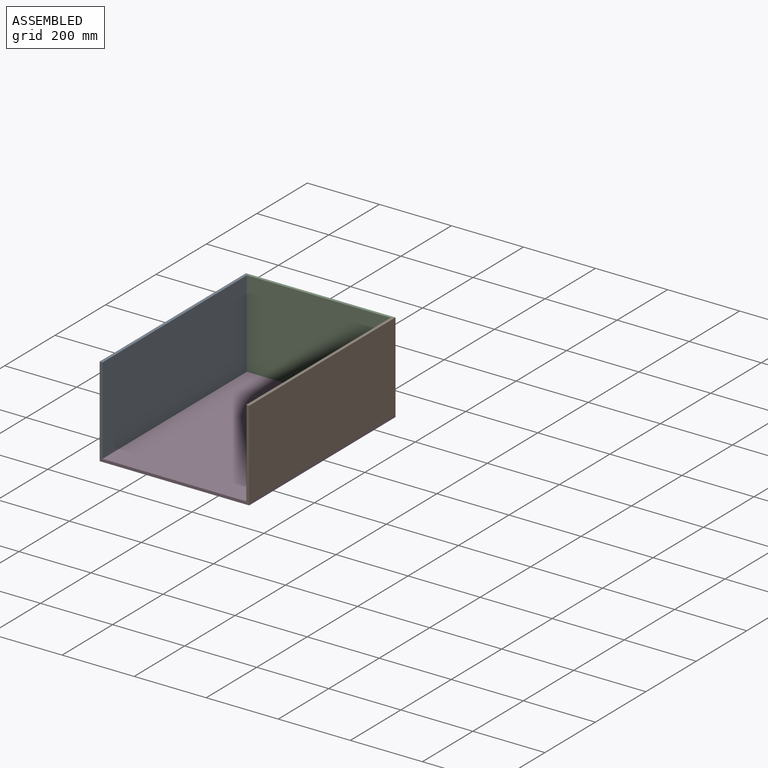
[diagram: assembled view]
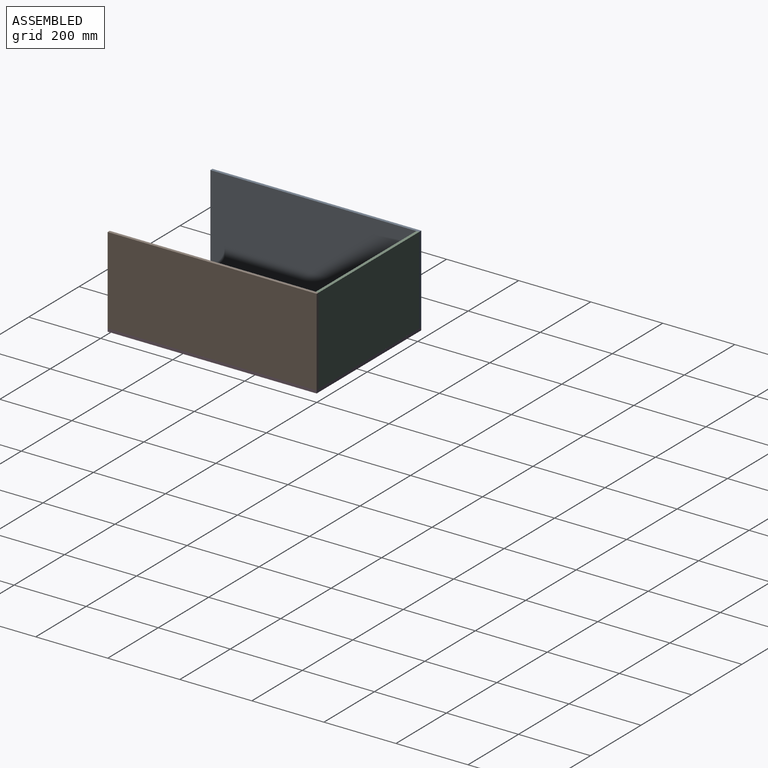
[diagram: assembled view, second angle]
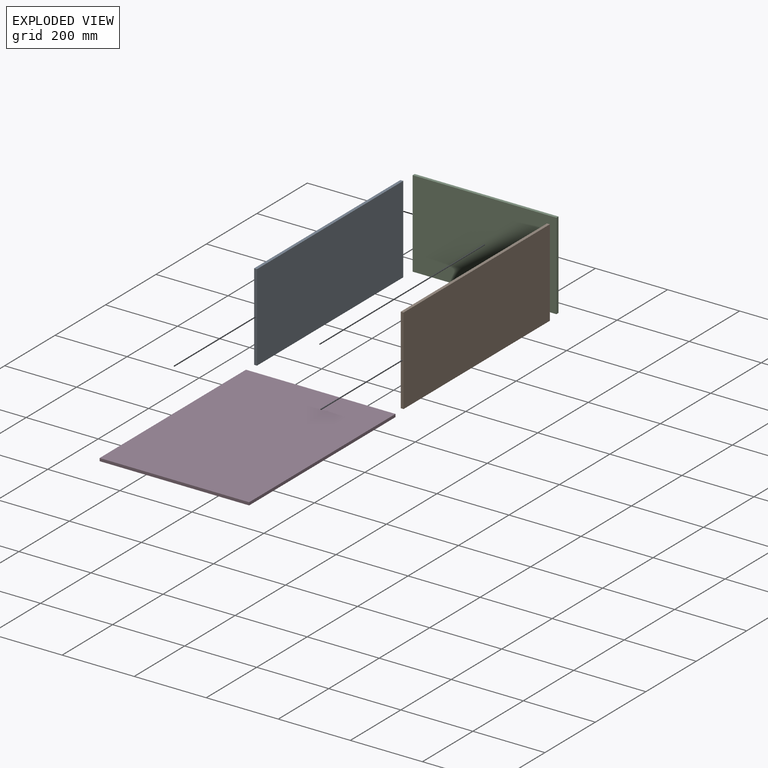
[diagram: exploded view]
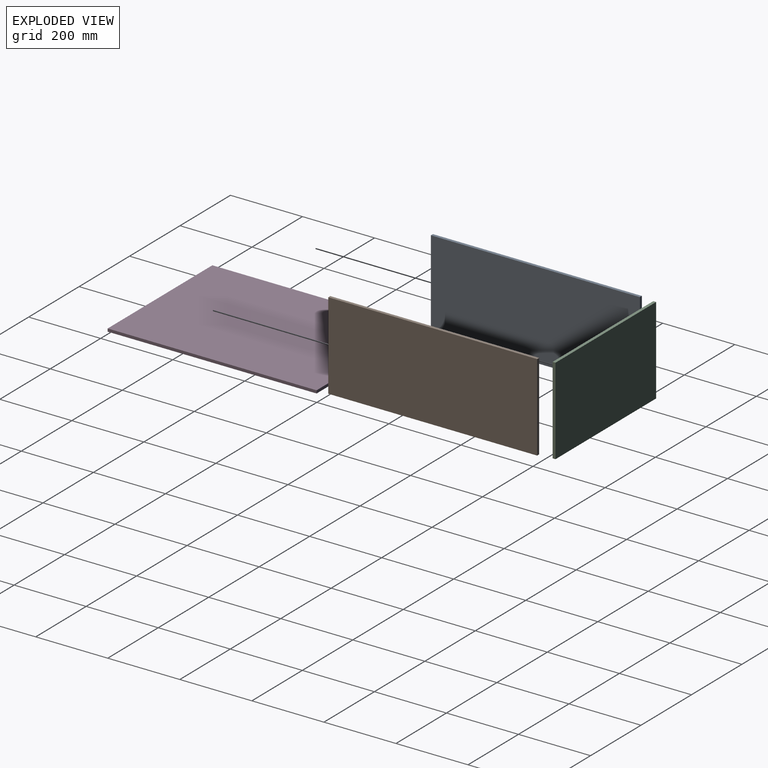
[diagram: exploded view, second angle]
ASSEMBLY  parts=4 mates=3
PART A: 6 faces, bbox 8x580x242 mm
  f0: plane 242x8mm, normal (0,1,0), area 1936mm2, adj f1,f3,f4,f5
  f1: plane 580x8mm, normal (0,0,1), area 4640mm2, adj f0,f2,f4,f5
  f2: plane 242x8mm, normal (0,-1,0), area 1936mm2, adj f1,f3,f4,f5
  f3: plane 580x8mm, normal (0,0,-1), area 4640mm2, adj f0,f2,f4,f5
  f4: plane 580x242mm, normal (1,0,0), area 140360mm2, adj f0,f1,f2,f3
  f5: plane 580x242mm, normal (-1,0,0), area 140360mm2, adj f0,f1,f2,f3
PART B: same geometry as A
PART C: 6 faces, bbox 399x8x242 mm
  f0: plane 242x8mm, normal (1,0,0), area 1936mm2, adj f1,f3,f4,f5
  f1: plane 399x8mm, normal (0,0,1), area 3192mm2, adj f0,f2,f4,f5
  f2: plane 242x8mm, normal (-1,0,0), area 1936mm2, adj f1,f3,f4,f5
  f3: plane 399x8mm, normal (0,0,-1), area 3192mm2, adj f0,f2,f4,f5
  f4: plane 399x242mm, normal (0,-1,0), area 96558mm2, adj f0,f1,f2,f3
  f5: plane 399x242mm, normal (0,1,0), area 96558mm2, adj f0,f1,f2,f3
PART D: 6 faces, bbox 415x580x8 mm
  f0: plane 580x8mm, normal (1,0,0), area 4640mm2, adj f1,f3,f4,f5
  f1: plane 415x8mm, normal (0,1,0), area 3320mm2, adj f0,f2,f4,f5
  f2: plane 580x8mm, normal (-1,0,0), area 4640mm2, adj f1,f3,f4,f5
  f3: plane 415x8mm, normal (0,-1,0), area 3320mm2, adj f0,f2,f4,f5
  f4: plane 580x415mm, normal (0,0,1), area 240700mm2, adj f0,f1,f2,f3
  f5: plane 580x415mm, normal (0,0,-1), area 240700mm2, adj f0,f1,f2,f3
PLACE A t=(-235.56,-24.79,112.11)mm
PLACE B t=(171.44,-24.79,112.11)mm
PLACE C t=(-28.06,265.21,112.11)mm
PLACE D t=(-28.06,-24.79,-16.89)mm
MATE fastened C.f5 <-> D.f1  axis (0,1,0) through (-28.06,265.21,-8.89)mm
MATE fastened A.f0 <-> D.f1  axis (0,1,0) through (-235.56,265.21,-8.89)mm
MATE fastened B.f0 <-> D.f1  axis (0,1,0) through (179.44,265.21,-8.89)mm
